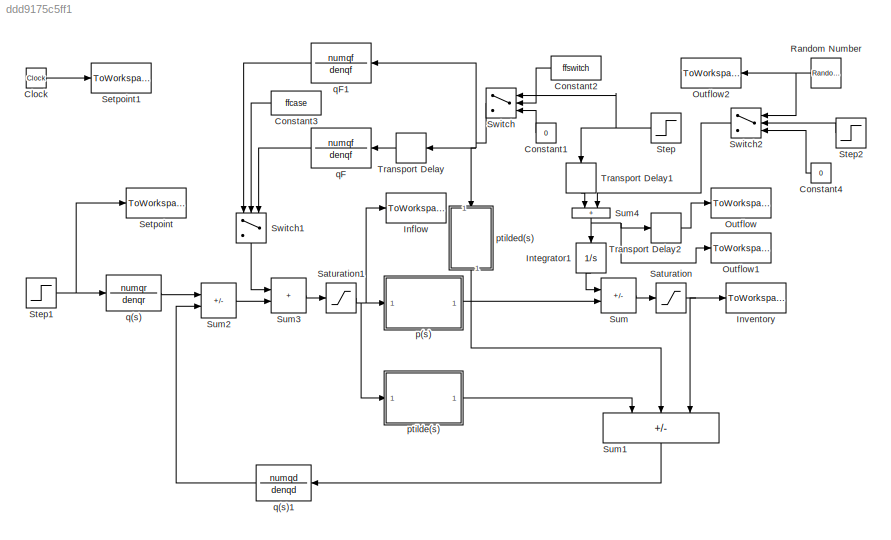
MODEL slx_ddd9175c5ff1
KIND model
CONFIG AbsTol = 1e-6
CONFIG EnableMultiTasking = off
CONFIG FixedStep = auto
CONFIG MaxStep = auto
CONFIG MinStep = auto
CONFIG RelTol = 1e-3
CONFIG SampleTimeConstraint = Unconstrained
CONFIG SolverName = ode15s
CONFIG StartTime = 0.0
CONFIG StopTime = 10.0
BLOCK [Clock] Clock
BLOCK [Constant] Constant1
  Value = 0
BLOCK [Constant] Constant2
  Value = ffswitch
BLOCK [Constant] Constant3
  Value = ffcase
BLOCK [Constant] Constant4
  Value = 0
BLOCK [ToWorkspace] Inflow
  MaxDataPoints = inf
  Ports = [1]
  SampleTime = -1
  VariableName = u
BLOCK [Integrator] Integrator1
  NameLocation = left
  Ports = [1, 1]
BLOCK [ToWorkspace] Inventory
  MaxDataPoints = inf
  Ports = [1]
  SampleTime = -1
  VariableName = y
BLOCK [ToWorkspace] Outflow
  MaxDataPoints = inf
  Ports = [1]
  SampleTime = -1
  VariableName = d
BLOCK [ToWorkspace] Outflow1
  MaxDataPoints = inf
  Ports = [1]
  SampleTime = -1
  VariableName = d1
BLOCK [ToWorkspace] Outflow2
  MaxDataPoints = inf
  Ports = [1]
  SampleTime = -1
  VariableName = e
BLOCK [RandomNumber] Random Number
  SampleTime = 1
  Variance = vard
BLOCK [Saturate] Saturation
  LowerLimit = -inf
  UpperLimit = inf
BLOCK [Saturate] Saturation1
  LowerLimit = -inf
  UpperLimit = inf
BLOCK [ToWorkspace] Setpoint
  MaxDataPoints = inf
  Ports = [1]
  SampleTime = -1
  VariableName = r
BLOCK [ToWorkspace] Setpoint1
  MaxDataPoints = inf
  Ports = [1]
  SampleTime = -1
  VariableName = t
BLOCK [Step] Step
  After = dchange
  NameLocation = top
  SampleTime = 0
  Time = 50
BLOCK [Step] Step1
  After = rchange
  NameLocation = top
  SampleTime = 0
BLOCK [Step] Step2
  SampleTime = 0
  Time = 85
BLOCK [Sum] Sum
  IconShape = rectangular
  InputSameDT = on
  Inputs = -+
  OutDataTypeStr = Inherit: Same as first input
  Ports = [2, 1]
  SaturateOnIntegerOverflow = on
BLOCK [Sum] Sum1
  IconShape = rectangular
  InputSameDT = on
  Inputs = -++
  NameLocation = left
  OutDataTypeStr = Inherit: Same as first input
  Ports = [3, 1]
  SaturateOnIntegerOverflow = on
BLOCK [Sum] Sum2
  IconShape = rectangular
  InputSameDT = on
  Inputs = +-
  OutDataTypeStr = Inherit: Same as first input
  Ports = [2, 1]
  SaturateOnIntegerOverflow = on
BLOCK [Sum] Sum3
  IconShape = rectangular
  InputSameDT = on
  OutDataTypeStr = Inherit: Same as first input
  Ports = [2, 1]
  SaturateOnIntegerOverflow = on
BLOCK [Sum] Sum4
  IconShape = rectangular
  InputSameDT = on
  NameLocation = left
  OutDataTypeStr = Inherit: Same as first input
  Ports = [2, 1]
  SaturateOnIntegerOverflow = on
BLOCK [Switch] Switch
  Threshold = 1
BLOCK [Switch] Switch1
  NameLocation = left
  Threshold = 1
BLOCK [Switch] Switch2
  Threshold = 1
BLOCK [TransportDelay] Transport Delay
  DelayTime = max(thetadtilde-thetaptilde,0)
  Ports = [1, 1]
BLOCK [TransportDelay] Transport Delay1
  DelayTime = (thetad-thetas)
  NameLocation = left
  Ports = [1, 1]
BLOCK [TransportDelay] Transport Delay2
  DelayTime = thetas
  Ports = [1, 1]
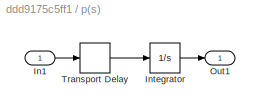
BLOCK [SubSystem] p(s)
  Ports = [1, 1]
  RequestExecContextInheritance = off
BLOCK [Inport] p(s)/In1
BLOCK [Integrator] p(s)/Integrator
  Ports = [1, 1]
BLOCK [Outport] p(s)/Out1
  InitialOutput = 0
BLOCK [TransportDelay] p(s)/Transport Delay
  DelayTime = thetap
  Ports = [1, 1]
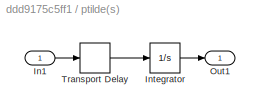
BLOCK [SubSystem] ptilde(s)
  Ports = [1, 1]
  RequestExecContextInheritance = off
BLOCK [Inport] ptilde(s)/In1
BLOCK [Integrator] ptilde(s)/Integrator
  Ports = [1, 1]
BLOCK [Outport] ptilde(s)/Out1
  InitialOutput = 0
BLOCK [TransportDelay] ptilde(s)/Transport Delay
  DelayTime = thetaptilde
  Ports = [1, 1]
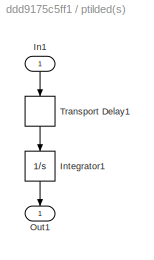
BLOCK [SubSystem] ptilded(s)
  NameLocation = right
  Ports = [1, 1]
  RequestExecContextInheritance = off
BLOCK [Inport] ptilded(s)/In1
  NameLocation = right
BLOCK [Integrator] ptilded(s)/Integrator1
  NameLocation = left
  Ports = [1, 1]
BLOCK [Outport] ptilded(s)/Out1
  InitialOutput = 0
  NameLocation = right
BLOCK [TransportDelay] ptilded(s)/Transport Delay1
  DelayTime = thetadtilde
  NameLocation = left
  Ports = [1, 1]
BLOCK [TransferFcn] q(s)
  Denominator = denqr
  Numerator = numqr
BLOCK [TransferFcn] q(s)1
  Denominator = denqd
  Numerator = numqd
BLOCK [TransferFcn] qF
  Denominator = denqf
  Numerator = numqf
BLOCK [TransferFcn] qF1
  Denominator = denqf
  Numerator = numqf
LINE Clock:1 -> Setpoint1:1
LINE Constant1:1 -> Switch:3
LINE Constant2:1 -> Switch:2
LINE Constant3:1 -> Switch1:2
LINE Constant4:1 -> Switch2:3
LINE Integrator1:1 -> Sum:1
NET Random Number:1 -> Outflow2:1, Switch2:1
NET Saturation1:1 -> Inflow:1, p(s):1, ptilde(s):1
NET Saturation:1 -> Inventory:1, Sum1:3
NET Step1:1 -> Setpoint:1, q(s):1
LINE Step2:1 -> Switch2:2
NET Step:1 -> Switch:1, Transport Delay1:1
LINE Sum1:1 -> q(s)1:1
LINE Sum2:1 -> Sum3:2
LINE Sum3:1 -> Saturation1:1
NET Sum4:1 -> Integrator1:1, Outflow1:1, Transport Delay2:1
LINE Sum:1 -> Saturation:1
LINE Switch1:1 -> Sum3:1
LINE Switch2:1 -> Sum4:2
NET Switch:1 -> Transport Delay:1, ptilded(s):1, qF1:1
LINE Transport Delay1:1 -> Sum4:1
LINE Transport Delay2:1 -> Outflow:1
LINE Transport Delay:1 -> qF:1
LINE p(s)/In1:1 -> p(s)/Transport Delay:1
LINE p(s)/Integrator:1 -> p(s)/Out1:1
LINE p(s)/Transport Delay:1 -> p(s)/Integrator:1
LINE p(s):1 -> Sum:2
LINE ptilde(s)/In1:1 -> ptilde(s)/Transport Delay:1
LINE ptilde(s)/Integrator:1 -> ptilde(s)/Out1:1
LINE ptilde(s)/Transport Delay:1 -> ptilde(s)/Integrator:1
LINE ptilde(s):1 -> Sum1:1
LINE ptilded(s)/In1:1 -> ptilded(s)/Transport Delay1:1
LINE ptilded(s)/Integrator1:1 -> ptilded(s)/Out1:1
LINE ptilded(s)/Transport Delay1:1 -> ptilded(s)/Integrator1:1
LINE ptilded(s):1 -> Sum1:2
LINE q(s)1:1 -> Sum2:2
LINE q(s):1 -> Sum2:1
LINE qF1:1 -> Switch1:1
LINE qF:1 -> Switch1:3
note: NET lines group one-source signal fan-out (src -> all destinations, sorted); 1:1 wires keep LINE
